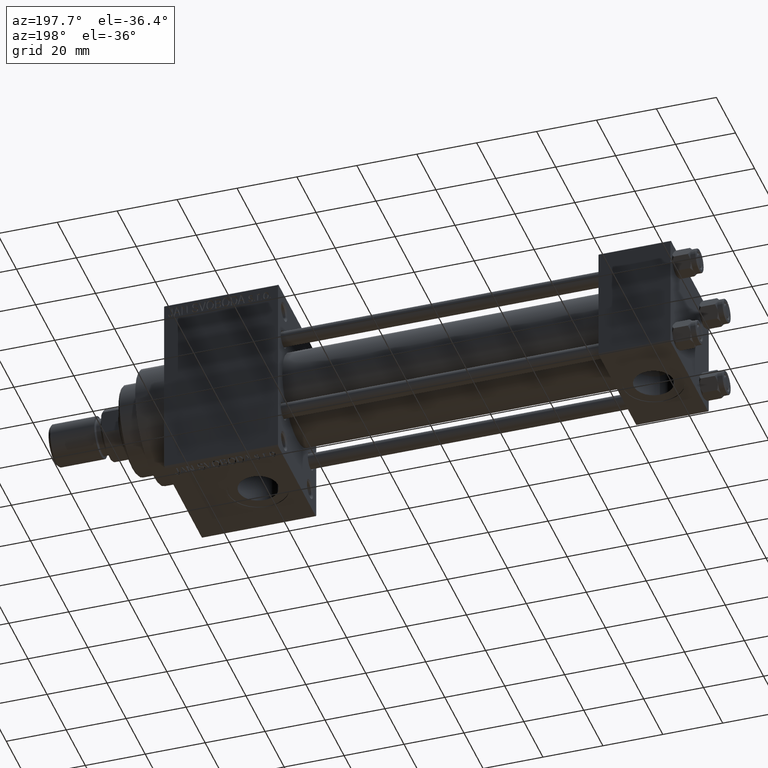
[diagram: clean part render]
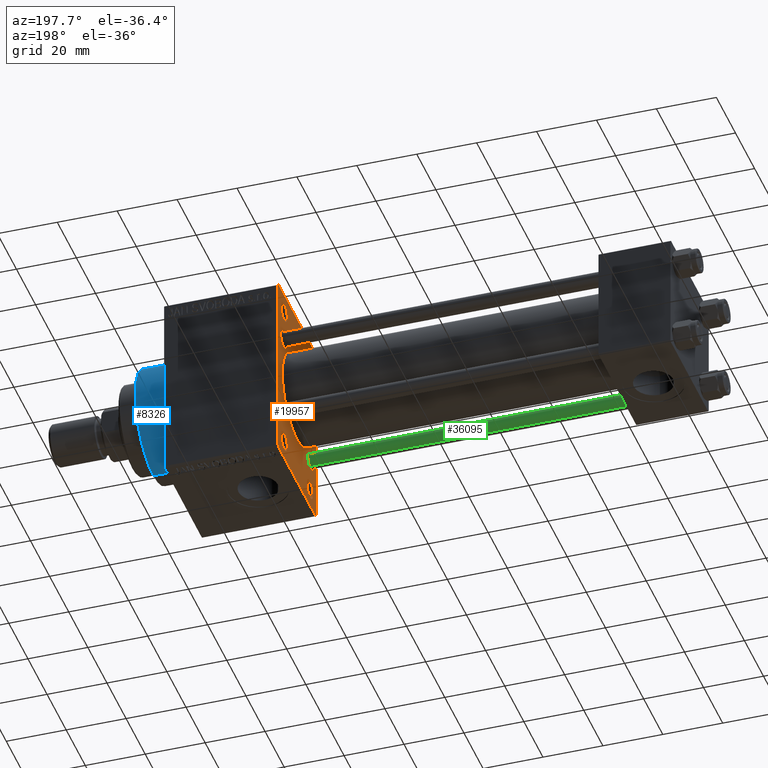
[diagram: same view with three faces highlighted in distinct colors, each labeled with its STEP entity id]
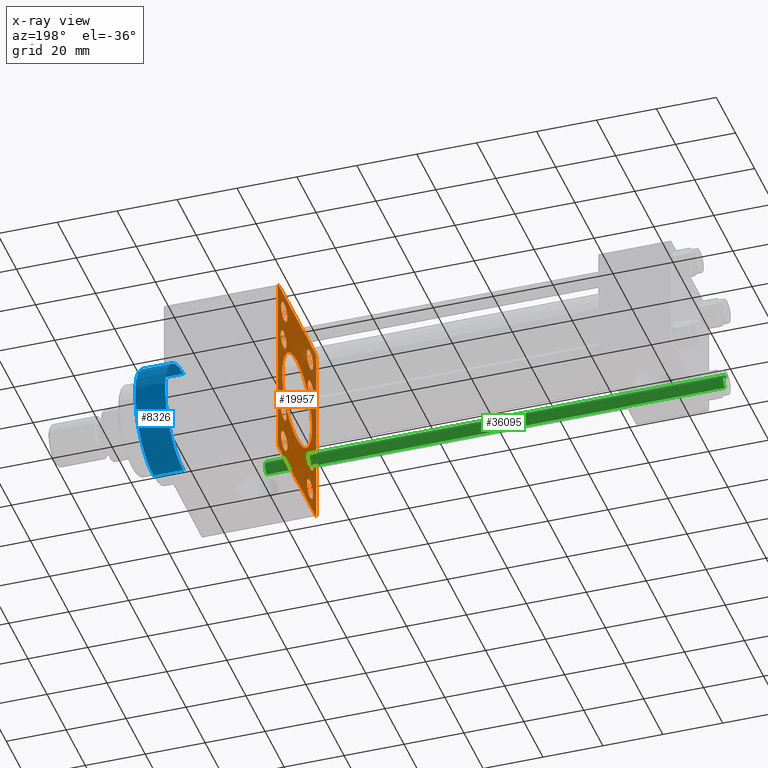
[diagram: x-ray of the same camera — body ghosted, the three highlighted faces saturated]
A machine part, auxiliary view with three faces highlighted in distinct colors.
The next image is the same camera in x-ray (body ghosted, the three faces saturated) — at least one of them is partly hidden behind the body in this view.
Their STEP definitions:

[orange] entity #19957 — the highlighted planar face has unit normal (-1, 0, 0).
#259 = VERTEX_POINT ( 'NONE', #4905 ) ;
#387 = ORIENTED_EDGE ( 'NONE', *, *, #3224, .T. ) ;
#580 = EDGE_CURVE ( 'NONE', #37065, #46453, #18593, .T. ) ;
#715 = CIRCLE ( 'NONE', #6868, 3.000000000000004441 ) ;
#876 = DIRECTION ( 'NONE',  ( 1.000000000000000000, 0.000000000000000000, 0.000000000000000000 ) ) ;
#950 = DIRECTION ( 'NONE',  ( 0.000000000000000000, 0.000000000000000000, 1.000000000000000000 ) ) ;
#1105 = DIRECTION ( 'NONE',  ( 0.000000000000000000, 0.000000000000000000, 1.000000000000000000 ) ) ;
#1132 = CARTESIAN_POINT ( 'NONE',  ( 131.0000000000000000, -19.49999999999997158, 31.99999999999999289 ) ) ;
#1135 = LINE ( 'NONE', #23267, #30967 ) ;
#1316 = VERTEX_POINT ( 'NONE', #16716 ) ;
#1395 = VERTEX_POINT ( 'NONE', #32395 ) ;
#1433 = EDGE_CURVE ( 'NONE', #30533, #46453, #46326, .T. ) ;
#1519 = ORIENTED_EDGE ( 'NONE', *, *, #36451, .T. ) ;
#1577 = ORIENTED_EDGE ( 'NONE', *, *, #42652, .T. ) ;
#1830 = DIRECTION ( 'NONE',  ( 0.000000000000000000, -1.000000000000000000, 0.000000000000000000 ) ) ;
#1849 = CARTESIAN_POINT ( 'NONE',  ( 131.0000000000000000, -13.50000000000000178, 25.50000000000000355 ) ) ;
#1903 = CARTESIAN_POINT ( 'NONE',  ( 131.0000000000000000, -13.50000000000000533, -25.49999999999999645 ) ) ;
#2145 = DIRECTION ( 'NONE',  ( 1.000000000000000000, 0.000000000000000000, 0.000000000000000000 ) ) ;
#2376 = CARTESIAN_POINT ( 'NONE',  ( 131.0000000000000000, -7.038826752868131828E-16, -15.50000000000000000 ) ) ;
#2819 = EDGE_CURVE ( 'NONE', #3789, #33809, #15700, .T. ) ;
#2947 = DIRECTION ( 'NONE',  ( 0.000000000000000000, 0.7071067811865474617, -0.7071067811865474617 ) ) ;
#2972 = VECTOR ( 'NONE', #6617, 1000.000000000000000 ) ;
#3224 = EDGE_CURVE ( 'NONE', #16885, #9035, #35958, .T. ) ;
#3440 = ORIENTED_EDGE ( 'NONE', *, *, #27578, .T. ) ;
#3789 = VERTEX_POINT ( 'NONE', #40495 ) ;
#4027 = DIRECTION ( 'NONE',  ( 0.000000000000000000, 0.000000000000000000, 1.000000000000000000 ) ) ;
#4072 = VECTOR ( 'NONE', #38363, 1000.000000000000000 ) ;
#4248 = FACE_BOUND ( 'NONE', #5681, .T. ) ;
#4351 = CARTESIAN_POINT ( 'NONE',  ( 131.0000000000000000, -14.15000000000000036, 14.15000000000000036 ) ) ;
#4597 = DIRECTION ( 'NONE',  ( 1.000000000000000000, 0.000000000000000000, 0.000000000000000000 ) ) ;
#4793 = EDGE_CURVE ( 'NONE', #16957, #9692, #40052, .T. ) ;
#4905 = CARTESIAN_POINT ( 'NONE',  ( 131.0000000000000000, -14.15000000000000036, 11.14999999999999503 ) ) ;
#5239 = AXIS2_PLACEMENT_3D ( 'NONE', #30130, #33951, #30355 ) ;
#5347 = ORIENTED_EDGE ( 'NONE', *, *, #4793, .T. ) ;
#5528 = DIRECTION ( 'NONE',  ( 0.000000000000000000, 0.000000000000000000, 1.000000000000000000 ) ) ;
#5681 = EDGE_LOOP ( 'NONE', ( #29160, #9591 ) ) ;
#5691 = CARTESIAN_POINT ( 'NONE',  ( 131.0000000000000000, -14.15000000000000036, -14.15000000000000036 ) ) ;
#6204 = ORIENTED_EDGE ( 'NONE', *, *, #40383, .T. ) ;
#6442 = ORIENTED_EDGE ( 'NONE', *, *, #10161, .T. ) ;
#6529 = EDGE_LOOP ( 'NONE', ( #23246, #5347, #27261, #10349, #10184, #17204, #1519, #8809 ) ) ;
#6617 = DIRECTION ( 'NONE',  ( 0.000000000000000000, -0.7071067811865328068, 0.7071067811865622277 ) ) ;
#6636 = CIRCLE ( 'NONE', #33476, 3.000000000000004441 ) ;
#6664 = EDGE_CURVE ( 'NONE', #13702, #38102, #9636, .T. ) ;
#6719 = CARTESIAN_POINT ( 'NONE',  ( 131.0000000000000000, -14.15000000000000036, 17.15000000000000568 ) ) ;
#6868 = AXIS2_PLACEMENT_3D ( 'NONE', #23236, #876, #1105 ) ;
#7360 = EDGE_LOOP ( 'NONE', ( #43178, #12274 ) ) ;
#8094 = FACE_BOUND ( 'NONE', #9357, .T. ) ;
#8494 = CARTESIAN_POINT ( 'NONE',  ( 131.0000000000000000, 25.75000000000000000, -25.75000000000000000 ) ) ;
#8809 = ORIENTED_EDGE ( 'NONE', *, *, #2819, .T. ) ;
#8856 = EDGE_CURVE ( 'NONE', #13812, #26885, #46566, .T. ) ;
#9035 = VERTEX_POINT ( 'NONE', #33381 ) ;
#9146 = DIRECTION ( 'NONE',  ( 0.000000000000000000, 0.000000000000000000, 1.000000000000000000 ) ) ;
#9357 = EDGE_LOOP ( 'NONE', ( #14183, #17517 ) ) ;
#9375 = DIRECTION ( 'NONE',  ( 0.000000000000000000, 0.000000000000000000, 1.000000000000000000 ) ) ;
#9591 = ORIENTED_EDGE ( 'NONE', *, *, #36874, .T. ) ;
#9636 = CIRCLE ( 'NONE', #44206, 3.000000000000004441 ) ;
#9692 = VERTEX_POINT ( 'NONE', #41463 ) ;
#10105 = EDGE_LOOP ( 'NONE', ( #3440, #6204 ) ) ;
#10161 = EDGE_CURVE ( 'NONE', #32827, #13862, #44307, .T. ) ;
#10184 = ORIENTED_EDGE ( 'NONE', *, *, #1433, .F. ) ;
#10244 = CARTESIAN_POINT ( 'NONE',  ( 131.0000000000000000, -25.75000000000041922, -25.74999999999934985 ) ) ;
#10334 = DIRECTION ( 'NONE',  ( 1.000000000000000000, 0.000000000000000000, 0.000000000000000000 ) ) ;
#10349 = ORIENTED_EDGE ( 'NONE', *, *, #580, .T. ) ;
#10894 = CARTESIAN_POINT ( 'NONE',  ( 131.0000000000000000, 25.75000000000000000, 25.75000000000000000 ) ) ;
#11320 = DIRECTION ( 'NONE',  ( 1.000000000000000000, 0.000000000000000000, 0.000000000000000000 ) ) ;
#11481 = DIRECTION ( 'NONE',  ( -1.000000000000000000, 0.000000000000000000, -0.000000000000000000 ) ) ;
#11610 = CARTESIAN_POINT ( 'NONE',  ( 131.0000000000000000, -25.74999999999943867, 25.75000000000087397 ) ) ;
#11634 = CARTESIAN_POINT ( 'NONE',  ( 131.0000000000000000, -14.15000000000000036, 14.15000000000000036 ) ) ;
#11707 = FACE_BOUND ( 'NONE', #7360, .T. ) ;
#11950 = CARTESIAN_POINT ( 'NONE',  ( 131.0000000000000000, -2.602085213965210642E-15, 15.50000000000000000 ) ) ;
#12263 = DIRECTION ( 'NONE',  ( 1.000000000000000000, 0.000000000000000000, 0.000000000000000000 ) ) ;
#12274 = ORIENTED_EDGE ( 'NONE', *, *, #18502, .T. ) ;
#12497 = CARTESIAN_POINT ( 'NONE',  ( 131.0000000000000000, 19.50000000000000000, 32.00000000000000000 ) ) ;
#12499 = DIRECTION ( 'NONE',  ( 1.000000000000000000, 0.000000000000000000, 0.000000000000000000 ) ) ;
#12662 = DIRECTION ( 'NONE',  ( 1.000000000000000000, 0.000000000000000000, 0.000000000000000000 ) ) ;
#12873 = AXIS2_PLACEMENT_3D ( 'NONE', #36808, #32259, #14447 ) ;
#13302 = EDGE_CURVE ( 'NONE', #25689, #1316, #6636, .T. ) ;
#13702 = VERTEX_POINT ( 'NONE', #14682 ) ;
#13812 = VERTEX_POINT ( 'NONE', #26447 ) ;
#13817 = AXIS2_PLACEMENT_3D ( 'NONE', #45897, #38219, #950 ) ;
#13862 = VERTEX_POINT ( 'NONE', #2376 ) ;
#14183 = ORIENTED_EDGE ( 'NONE', *, *, #6664, .T. ) ;
#14348 = AXIS2_PLACEMENT_3D ( 'NONE', #33138, #32655, #32893 ) ;
#14447 = DIRECTION ( 'NONE',  ( 0.000000000000000000, 0.000000000000000000, 1.000000000000000000 ) ) ;
#14682 = CARTESIAN_POINT ( 'NONE',  ( 131.0000000000000000, -14.15000000000000036, -11.14999999999999680 ) ) ;
#15096 = EDGE_CURVE ( 'NONE', #22489, #28558, #27303, .T. ) ;
#15247 = CIRCLE ( 'NONE', #13817, 3.000000000000004441 ) ;
#15314 = FACE_BOUND ( 'NONE', #10105, .T. ) ;
#15548 = FACE_BOUND ( 'NONE', #37184, .T. ) ;
#15652 = EDGE_CURVE ( 'NONE', #43996, #259, #18885, .T. ) ;
#15700 = LINE ( 'NONE', #8494, #22838 ) ;
#15851 = CARTESIAN_POINT ( 'NONE',  ( 131.0000000000000000, 14.15000000000000036, 11.14999999999999680 ) ) ;
#15911 = DIRECTION ( 'NONE',  ( 1.000000000000000000, 0.000000000000000000, 0.000000000000000000 ) ) ;
#15997 = CARTESIAN_POINT ( 'NONE',  ( 131.0000000000000000, -20.00000000000000000, 31.99999999999999289 ) ) ;
#16365 = AXIS2_PLACEMENT_3D ( 'NONE', #31025, #12263, #5528 ) ;
#16707 = CARTESIAN_POINT ( 'NONE',  ( 131.0000000000000000, -13.50000000000000533, -22.25000000000004619 ) ) ;
#16716 = CARTESIAN_POINT ( 'NONE',  ( 131.0000000000000000, 14.15000000000000036, -17.15000000000000568 ) ) ;
#16810 = AXIS2_PLACEMENT_3D ( 'NONE', #1903, #2145, #9375 ) ;
#16885 = VERTEX_POINT ( 'NONE', #24951 ) ;
#16957 = VERTEX_POINT ( 'NONE', #20628 ) ;
#17184 = CARTESIAN_POINT ( 'NONE',  ( 131.0000000000000000, 13.49999999999999822, -22.25000000000004974 ) ) ;
#17204 = ORIENTED_EDGE ( 'NONE', *, *, #18445, .T. ) ;
#17517 = ORIENTED_EDGE ( 'NONE', *, *, #45270, .T. ) ;
#17530 = CARTESIAN_POINT ( 'NONE',  ( 131.0000000000000000, -2.602085213965210642E-15, 0.000000000000000000 ) ) ;
#17609 = CIRCLE ( 'NONE', #16810, 3.249999999999947597 ) ;
#18417 = ORIENTED_EDGE ( 'NONE', *, *, #23006, .T. ) ;
#18445 = EDGE_CURVE ( 'NONE', #30533, #1395, #44059, .T. ) ;
#18466 = FACE_OUTER_BOUND ( 'NONE', #6529, .T. ) ;
#18502 = EDGE_CURVE ( 'NONE', #259, #43996, #31239, .T. ) ;
#18562 = CARTESIAN_POINT ( 'NONE',  ( 131.0000000000000000, -14.15000000000000036, -17.15000000000000568 ) ) ;
#18593 = LINE ( 'NONE', #11610, #45158 ) ;
#18674 = CIRCLE ( 'NONE', #16365, 3.249999999999947597 ) ;
#18885 = CIRCLE ( 'NONE', #43471, 3.000000000000004441 ) ;
#18922 = DIRECTION ( 'NONE',  ( 1.000000000000000000, 0.000000000000000000, 0.000000000000000000 ) ) ;
#18970 = EDGE_LOOP ( 'NONE', ( #18417, #44175 ) ) ;
#19029 = DIRECTION ( 'NONE',  ( 0.000000000000000000, 0.000000000000000000, 1.000000000000000000 ) ) ;
#19051 = CIRCLE ( 'NONE', #46718, 3.249999999999947597 ) ;
#19076 = DIRECTION ( 'NONE',  ( 1.000000000000000000, 0.000000000000000000, 0.000000000000000000 ) ) ;
#19957 = ADVANCED_FACE ( 'NONE', ( #29765, #40339, #4248, #15548, #11707, #15314, #26164, #8094, #30230, #18466 ), #26623, .T. ) ;
#20473 = EDGE_CURVE ( 'NONE', #24222, #45761, #42845, .T. ) ;
#20628 = CARTESIAN_POINT ( 'NONE',  ( 131.0000000000000000, -19.50000000000002842, -32.00000000000000000 ) ) ;
#21228 = ORIENTED_EDGE ( 'NONE', *, *, #43102, .T. ) ;
#21236 = AXIS2_PLACEMENT_3D ( 'NONE', #22600, #11320, #40652 ) ;
#21570 = EDGE_CURVE ( 'NONE', #9035, #16885, #40577, .T. ) ;
#21573 = EDGE_CURVE ( 'NONE', #28558, #22489, #19051, .T. ) ;
#21798 = CARTESIAN_POINT ( 'NONE',  ( 131.0000000000000000, 20.00000000000000000, 32.00000000000000000 ) ) ;
#22489 = VERTEX_POINT ( 'NONE', #44560 ) ;
#22600 = CARTESIAN_POINT ( 'NONE',  ( 131.0000000000000000, -13.50000000000000533, -25.49999999999999645 ) ) ;
#22838 = VECTOR ( 'NONE', #23631, 1000.000000000000114 ) ;
#23006 = EDGE_CURVE ( 'NONE', #26885, #13812, #17609, .T. ) ;
#23236 = CARTESIAN_POINT ( 'NONE',  ( 131.0000000000000000, 14.15000000000000036, 14.15000000000000036 ) ) ;
#23246 = ORIENTED_EDGE ( 'NONE', *, *, #28681, .T. ) ;
#23267 = CARTESIAN_POINT ( 'NONE',  ( 131.0000000000000000, 20.00000000000000000, 32.00000000000000000 ) ) ;
#23631 = DIRECTION ( 'NONE',  ( -0.000000000000000000, -0.7071067811865474617, -0.7071067811865474617 ) ) ;
#24222 = VERTEX_POINT ( 'NONE', #17184 ) ;
#24357 = VECTOR ( 'NONE', #39116, 1000.000000000000000 ) ;
#24586 = DIRECTION ( 'NONE',  ( 1.000000000000000000, 0.000000000000000000, 0.000000000000000000 ) ) ;
#24951 = CARTESIAN_POINT ( 'NONE',  ( 131.0000000000000000, 13.49999999999999822, 28.74999999999995381 ) ) ;
#25255 = CIRCLE ( 'NONE', #26015, 3.000000000000004441 ) ;
#25689 = VERTEX_POINT ( 'NONE', #32473 ) ;
#26015 = AXIS2_PLACEMENT_3D ( 'NONE', #27953, #24586, #39480 ) ;
#26164 = FACE_BOUND ( 'NONE', #27759, .T. ) ;
#26312 = DIRECTION ( 'NONE',  ( 0.000000000000000000, 0.000000000000000000, 1.000000000000000000 ) ) ;
#26447 = CARTESIAN_POINT ( 'NONE',  ( 131.0000000000000000, -13.50000000000000533, -28.74999999999994316 ) ) ;
#26623 = PLANE ( 'NONE',  #46688 ) ;
#26870 = CARTESIAN_POINT ( 'NONE',  ( 131.0000000000000000, -13.50000000000000178, 22.25000000000005329 ) ) ;
#26885 = VERTEX_POINT ( 'NONE', #16707 ) ;
#27261 = ORIENTED_EDGE ( 'NONE', *, *, #36529, .F. ) ;
#27303 = CIRCLE ( 'NONE', #28095, 3.249999999999947597 ) ;
#27578 = EDGE_CURVE ( 'NONE', #32033, #45240, #715, .T. ) ;
#27759 = EDGE_LOOP ( 'NONE', ( #40409, #1577 ) ) ;
#27953 = CARTESIAN_POINT ( 'NONE',  ( 131.0000000000000000, 14.15000000000000036, -14.15000000000000036 ) ) ;
#28095 = AXIS2_PLACEMENT_3D ( 'NONE', #1849, #34312, #45616 ) ;
#28558 = VERTEX_POINT ( 'NONE', #26870 ) ;
#28681 = EDGE_CURVE ( 'NONE', #33809, #16957, #42475, .T. ) ;
#29046 = AXIS2_PLACEMENT_3D ( 'NONE', #45452, #12499, #9146 ) ;
#29160 = ORIENTED_EDGE ( 'NONE', *, *, #20473, .T. ) ;
#29765 = FACE_BOUND ( 'NONE', #34418, .T. ) ;
#30001 = DIRECTION ( 'NONE',  ( -0.000000000000000000, 0.000000000000000000, 1.000000000000000000 ) ) ;
#30130 = CARTESIAN_POINT ( 'NONE',  ( 131.0000000000000000, 13.49999999999999822, 25.50000000000000355 ) ) ;
#30205 = LINE ( 'NONE', #15997, #4072 ) ;
#30230 = FACE_BOUND ( 'NONE', #36566, .T. ) ;
#30355 = DIRECTION ( 'NONE',  ( 0.000000000000000000, 0.000000000000000000, 1.000000000000000000 ) ) ;
#30533 = VERTEX_POINT ( 'NONE', #12497 ) ;
#30967 = VECTOR ( 'NONE', #37940, 1000.000000000000000 ) ;
#31025 = CARTESIAN_POINT ( 'NONE',  ( 131.0000000000000000, 13.49999999999999822, -25.50000000000000000 ) ) ;
#31239 = CIRCLE ( 'NONE', #35072, 3.000000000000004441 ) ;
#31588 = ORIENTED_EDGE ( 'NONE', *, *, #21570, .T. ) ;
#32033 = VERTEX_POINT ( 'NONE', #44520 ) ;
#32259 = DIRECTION ( 'NONE',  ( 1.000000000000000000, 0.000000000000000000, 0.000000000000000000 ) ) ;
#32395 = CARTESIAN_POINT ( 'NONE',  ( 131.0000000000000000, 20.00000000000000000, 31.50000000000000000 ) ) ;
#32473 = CARTESIAN_POINT ( 'NONE',  ( 131.0000000000000000, 14.15000000000000036, -11.14999999999999680 ) ) ;
#32655 = DIRECTION ( 'NONE',  ( 1.000000000000000000, 0.000000000000000000, 0.000000000000000000 ) ) ;
#32827 = VERTEX_POINT ( 'NONE', #11950 ) ;
#32893 = DIRECTION ( 'NONE',  ( 0.000000000000000000, 0.000000000000000000, -1.000000000000000000 ) ) ;
#33138 = CARTESIAN_POINT ( 'NONE',  ( 131.0000000000000000, -2.602085213965210642E-15, 0.000000000000000000 ) ) ;
#33264 = DIRECTION ( 'NONE',  ( -0.000000000000000000, 0.7071067811865672237, 0.7071067811865279218 ) ) ;
#33381 = CARTESIAN_POINT ( 'NONE',  ( 131.0000000000000000, 13.49999999999999822, 22.25000000000005684 ) ) ;
#33476 = AXIS2_PLACEMENT_3D ( 'NONE', #47557, #18922, #4027 ) ;
#33493 = CARTESIAN_POINT ( 'NONE',  ( 131.0000000000000000, 13.49999999999999822, -28.74999999999994671 ) ) ;
#33809 = VERTEX_POINT ( 'NONE', #44388 ) ;
#33951 = DIRECTION ( 'NONE',  ( 1.000000000000000000, 0.000000000000000000, 0.000000000000000000 ) ) ;
#34312 = DIRECTION ( 'NONE',  ( 1.000000000000000000, 0.000000000000000000, 0.000000000000000000 ) ) ;
#34381 = ORIENTED_EDGE ( 'NONE', *, *, #21573, .T. ) ;
#34418 = EDGE_LOOP ( 'NONE', ( #45580, #34381 ) ) ;
#34777 = CARTESIAN_POINT ( 'NONE',  ( 131.0000000000000000, 20.00000000000000000, -32.00000000000000000 ) ) ;
#35072 = AXIS2_PLACEMENT_3D ( 'NONE', #4351, #41150, #19029 ) ;
#35958 = CIRCLE ( 'NONE', #29046, 3.249999999999947597 ) ;
#36451 = EDGE_CURVE ( 'NONE', #1395, #3789, #1135, .T. ) ;
#36529 = EDGE_CURVE ( 'NONE', #37065, #9692, #30205, .T. ) ;
#36566 = EDGE_LOOP ( 'NONE', ( #6442, #21228 ) ) ;
#36786 = CIRCLE ( 'NONE', #42928, 15.50000000000000000 ) ;
#36808 = CARTESIAN_POINT ( 'NONE',  ( 131.0000000000000000, 13.49999999999999822, -25.50000000000000000 ) ) ;
#36874 = EDGE_CURVE ( 'NONE', #45761, #24222, #18674, .T. ) ;
#36985 = CARTESIAN_POINT ( 'NONE',  ( 131.0000000000000000, 0.000000000000000000, 0.000000000000000000 ) ) ;
#37065 = VERTEX_POINT ( 'NONE', #42551 ) ;
#37184 = EDGE_LOOP ( 'NONE', ( #387, #31588 ) ) ;
#37621 = VECTOR ( 'NONE', #1830, 1000.000000000000000 ) ;
#37940 = DIRECTION ( 'NONE',  ( 0.000000000000000000, 0.000000000000000000, -1.000000000000000000 ) ) ;
#38102 = VERTEX_POINT ( 'NONE', #18562 ) ;
#38219 = DIRECTION ( 'NONE',  ( 1.000000000000000000, 0.000000000000000000, 0.000000000000000000 ) ) ;
#38363 = DIRECTION ( 'NONE',  ( 0.000000000000000000, 0.000000000000000000, -1.000000000000000000 ) ) ;
#39116 = DIRECTION ( 'NONE',  ( 0.000000000000000000, -1.000000000000000000, -1.734723475976807094E-16 ) ) ;
#39480 = DIRECTION ( 'NONE',  ( 0.000000000000000000, 0.000000000000000000, 1.000000000000000000 ) ) ;
#40052 = LINE ( 'NONE', #10244, #2972 ) ;
#40145 = DIRECTION ( 'NONE',  ( 0.000000000000000000, 0.000000000000000000, -1.000000000000000000 ) ) ;
#40261 = AXIS2_PLACEMENT_3D ( 'NONE', #44767, #4597, #44064 ) ;
#40339 = FACE_BOUND ( 'NONE', #18970, .T. ) ;
#40383 = EDGE_CURVE ( 'NONE', #45240, #32033, #43354, .T. ) ;
#40409 = ORIENTED_EDGE ( 'NONE', *, *, #13302, .T. ) ;
#40495 = CARTESIAN_POINT ( 'NONE',  ( 131.0000000000000000, 20.00000000000000000, -31.50000000000000000 ) ) ;
#40577 = CIRCLE ( 'NONE', #5239, 3.249999999999947597 ) ;
#40652 = DIRECTION ( 'NONE',  ( 0.000000000000000000, 0.000000000000000000, 1.000000000000000000 ) ) ;
#41150 = DIRECTION ( 'NONE',  ( 1.000000000000000000, 0.000000000000000000, 0.000000000000000000 ) ) ;
#41463 = CARTESIAN_POINT ( 'NONE',  ( 131.0000000000000000, -20.00000000000000000, -31.50000000000000711 ) ) ;
#41981 = VECTOR ( 'NONE', #2947, 1000.000000000000114 ) ;
#42253 = DIRECTION ( 'NONE',  ( 0.000000000000000000, 0.000000000000000000, 1.000000000000000000 ) ) ;
#42475 = LINE ( 'NONE', #34777, #37621 ) ;
#42551 = CARTESIAN_POINT ( 'NONE',  ( 131.0000000000000000, -20.00000000000000000, 31.49999999999999289 ) ) ;
#42652 = EDGE_CURVE ( 'NONE', #1316, #25689, #25255, .T. ) ;
#42845 = CIRCLE ( 'NONE', #12873, 3.249999999999947597 ) ;
#42928 = AXIS2_PLACEMENT_3D ( 'NONE', #17530, #10334, #40145 ) ;
#43102 = EDGE_CURVE ( 'NONE', #13862, #32827, #36786, .T. ) ;
#43178 = ORIENTED_EDGE ( 'NONE', *, *, #15652, .T. ) ;
#43354 = CIRCLE ( 'NONE', #40261, 3.000000000000004441 ) ;
#43471 = AXIS2_PLACEMENT_3D ( 'NONE', #11634, #19076, #26312 ) ;
#43996 = VERTEX_POINT ( 'NONE', #6719 ) ;
#44059 = LINE ( 'NONE', #10894, #41981 ) ;
#44064 = DIRECTION ( 'NONE',  ( 0.000000000000000000, 0.000000000000000000, 1.000000000000000000 ) ) ;
#44175 = ORIENTED_EDGE ( 'NONE', *, *, #8856, .T. ) ;
#44206 = AXIS2_PLACEMENT_3D ( 'NONE', #5691, #12662, #42253 ) ;
#44307 = CIRCLE ( 'NONE', #14348, 15.50000000000000000 ) ;
#44388 = CARTESIAN_POINT ( 'NONE',  ( 131.0000000000000000, 19.50000000000000000, -32.00000000000000000 ) ) ;
#44520 = CARTESIAN_POINT ( 'NONE',  ( 131.0000000000000000, 14.15000000000000036, 17.15000000000000568 ) ) ;
#44560 = CARTESIAN_POINT ( 'NONE',  ( 131.0000000000000000, -13.50000000000000178, 28.74999999999995026 ) ) ;
#44767 = CARTESIAN_POINT ( 'NONE',  ( 131.0000000000000000, 14.15000000000000036, 14.15000000000000036 ) ) ;
#45012 = CARTESIAN_POINT ( 'NONE',  ( 131.0000000000000000, -13.50000000000000178, 25.50000000000000355 ) ) ;
#45158 = VECTOR ( 'NONE', #33264, 1000.000000000000000 ) ;
#45240 = VERTEX_POINT ( 'NONE', #15851 ) ;
#45256 = DIRECTION ( 'NONE',  ( 0.000000000000000000, 0.000000000000000000, 1.000000000000000000 ) ) ;
#45270 = EDGE_CURVE ( 'NONE', #38102, #13702, #15247, .T. ) ;
#45452 = CARTESIAN_POINT ( 'NONE',  ( 131.0000000000000000, 13.49999999999999822, 25.50000000000000355 ) ) ;
#45580 = ORIENTED_EDGE ( 'NONE', *, *, #15096, .T. ) ;
#45616 = DIRECTION ( 'NONE',  ( 0.000000000000000000, 0.000000000000000000, 1.000000000000000000 ) ) ;
#45761 = VERTEX_POINT ( 'NONE', #33493 ) ;
#45897 = CARTESIAN_POINT ( 'NONE',  ( 131.0000000000000000, -14.15000000000000036, -14.15000000000000036 ) ) ;
#46326 = LINE ( 'NONE', #21798, #24357 ) ;
#46453 = VERTEX_POINT ( 'NONE', #1132 ) ;
#46566 = CIRCLE ( 'NONE', #21236, 3.249999999999947597 ) ;
#46688 = AXIS2_PLACEMENT_3D ( 'NONE', #36985, #11481, #30001 ) ;
#46718 = AXIS2_PLACEMENT_3D ( 'NONE', #45012, #15911, #45256 ) ;
#47557 = CARTESIAN_POINT ( 'NONE',  ( 131.0000000000000000, 14.15000000000000036, -14.15000000000000036 ) ) ;

[blue] entity #8326 — the highlighted cylindrical surface (partial cylindrical patch) has radius 19 mm, axis along (-1, -0, -0).
#1362 = DIRECTION ( 'NONE',  ( -1.000000000000000000, -0.000000000000000000, -0.000000000000000000 ) ) ;
#1502 = LINE ( 'NONE', #44572, #31652 ) ;
#2267 = ORIENTED_EDGE ( 'NONE', *, *, #6613, .T. ) ;
#3332 = VERTEX_POINT ( 'NONE', #40146 ) ;
#6137 = VERTEX_POINT ( 'NONE', #22833 ) ;
#6607 = AXIS2_PLACEMENT_3D ( 'NONE', #44196, #40347, #43492 ) ;
#6613 = EDGE_CURVE ( 'NONE', #3332, #17617, #15798, .T. ) ;
#8326 = ADVANCED_FACE ( 'NONE', ( #32195 ), #25693, .T. ) ;
#8724 = EDGE_CURVE ( 'NONE', #17617, #6137, #20434, .T. ) ;
#11717 = DIRECTION ( 'NONE',  ( 1.000000000000000000, 0.000000000000000000, 0.000000000000000000 ) ) ;
#15798 = LINE ( 'NONE', #23493, #21923 ) ;
#17186 = EDGE_LOOP ( 'NONE', ( #40620, #2267, #17380, #31642 ) ) ;
#17380 = ORIENTED_EDGE ( 'NONE', *, *, #8724, .T. ) ;
#17617 = VERTEX_POINT ( 'NONE', #43772 ) ;
#20434 = CIRCLE ( 'NONE', #24291, 19.00000000000000000 ) ;
#21923 = VECTOR ( 'NONE', #1362, 1000.000000000000000 ) ;
#22833 = CARTESIAN_POINT ( 'NONE',  ( 169.0000000000000000, 0.000000000000000000, 19.00000000000000000 ) ) ;
#23033 = CIRCLE ( 'NONE', #35307, 19.00000000000000000 ) ;
#23493 = CARTESIAN_POINT ( 'NONE',  ( 179.0000000000000284, 2.326828918379970970E-15, -19.00000000000000000 ) ) ;
#24291 = AXIS2_PLACEMENT_3D ( 'NONE', #43319, #25041, #39703 ) ;
#25041 = DIRECTION ( 'NONE',  ( 1.000000000000000000, 0.000000000000000000, 0.000000000000000000 ) ) ;
#25693 = CYLINDRICAL_SURFACE ( 'NONE', #6607, 19.00000000000000000 ) ;
#26319 = VERTEX_POINT ( 'NONE', #42576 ) ;
#27245 = DIRECTION ( 'NONE',  ( -1.000000000000000000, -0.000000000000000000, -0.000000000000000000 ) ) ;
#29479 = EDGE_CURVE ( 'NONE', #3332, #26319, #23033, .T. ) ;
#30013 = CARTESIAN_POINT ( 'NONE',  ( 179.0000000000000284, 0.000000000000000000, 0.000000000000000000 ) ) ;
#31642 = ORIENTED_EDGE ( 'NONE', *, *, #34224, .F. ) ;
#31652 = VECTOR ( 'NONE', #27245, 1000.000000000000000 ) ;
#32195 = FACE_OUTER_BOUND ( 'NONE', #17186, .T. ) ;
#34224 = EDGE_CURVE ( 'NONE', #26319, #6137, #1502, .T. ) ;
#35307 = AXIS2_PLACEMENT_3D ( 'NONE', #30013, #11717, #40589 ) ;
#39703 = DIRECTION ( 'NONE',  ( 0.000000000000000000, 0.000000000000000000, -1.000000000000000000 ) ) ;
#40146 = CARTESIAN_POINT ( 'NONE',  ( 179.0000000000000284, 2.326828918379970970E-15, -19.00000000000000000 ) ) ;
#40347 = DIRECTION ( 'NONE',  ( -1.000000000000000000, -0.000000000000000000, -0.000000000000000000 ) ) ;
#40589 = DIRECTION ( 'NONE',  ( 0.000000000000000000, 0.000000000000000000, -1.000000000000000000 ) ) ;
#40620 = ORIENTED_EDGE ( 'NONE', *, *, #29479, .F. ) ;
#42576 = CARTESIAN_POINT ( 'NONE',  ( 179.0000000000000284, 0.000000000000000000, 19.00000000000000000 ) ) ;
#43319 = CARTESIAN_POINT ( 'NONE',  ( 169.0000000000000000, 0.000000000000000000, 0.000000000000000000 ) ) ;
#43492 = DIRECTION ( 'NONE',  ( 0.000000000000000000, 0.000000000000000000, 1.000000000000000000 ) ) ;
#43772 = CARTESIAN_POINT ( 'NONE',  ( 169.0000000000000000, 2.326828918379970970E-15, -19.00000000000000000 ) ) ;
#44196 = CARTESIAN_POINT ( 'NONE',  ( 179.0000000000000284, 0.000000000000000000, 0.000000000000000000 ) ) ;
#44572 = CARTESIAN_POINT ( 'NONE',  ( 179.0000000000000284, 0.000000000000000000, 19.00000000000000000 ) ) ;

[green] entity #36095 — the highlighted cylindrical surface (edge-blend (fillet) strip) has radius 2.5 mm, axis along (-1, 0, 0).
#449 = ORIENTED_EDGE ( 'NONE', *, *, #18768, .T. ) ;
#2078 = CARTESIAN_POINT ( 'NONE',  ( 2.500000000000000000, 3.061616997868383141E-16, 153.5000000000000284 ) ) ;
#2536 = ORIENTED_EDGE ( 'NONE', *, *, #16004, .T. ) ;
#4930 = CYLINDRICAL_SURFACE ( 'NONE', #43226, 2.500000000000000000 ) ;
#6013 = VECTOR ( 'NONE', #23324, 1000.000000000000000 ) ;
#8427 = LINE ( 'NONE', #15868, #6013 ) ;
#8439 = VERTEX_POINT ( 'NONE', #2078 ) ;
#9798 = CIRCLE ( 'NONE', #36675, 2.500000000000000000 ) ;
#12154 = EDGE_LOOP ( 'NONE', ( #16756, #2536, #17245, #449 ) ) ;
#14296 = CIRCLE ( 'NONE', #19659, 2.500000000000000000 ) ;
#15766 = DIRECTION ( 'NONE',  ( -0.000000000000000000, -0.000000000000000000, -1.000000000000000000 ) ) ;
#15868 = CARTESIAN_POINT ( 'NONE',  ( 2.500000000000000000, 3.061616997868383141E-16, 154.0000000000000000 ) ) ;
#16004 = EDGE_CURVE ( 'NONE', #8439, #18882, #14296, .T. ) ;
#16756 = ORIENTED_EDGE ( 'NONE', *, *, #42812, .F. ) ;
#17245 = ORIENTED_EDGE ( 'NONE', *, *, #41488, .T. ) ;
#18768 = EDGE_CURVE ( 'NONE', #37721, #31385, #9798, .T. ) ;
#18882 = VERTEX_POINT ( 'NONE', #41752 ) ;
#19659 = AXIS2_PLACEMENT_3D ( 'NONE', #30690, #32932, #29567 ) ;
#19934 = LINE ( 'NONE', #20169, #25226 ) ;
#20169 = CARTESIAN_POINT ( 'NONE',  ( -2.500000000000000000, 0.000000000000000000, 154.0000000000000000 ) ) ;
#23223 = CARTESIAN_POINT ( 'NONE',  ( 0.000000000000000000, 0.000000000000000000, 154.0000000000000000 ) ) ;
#23324 = DIRECTION ( 'NONE',  ( -0.000000000000000000, -0.000000000000000000, -1.000000000000000000 ) ) ;
#25226 = VECTOR ( 'NONE', #34354, 1000.000000000000000 ) ;
#28257 = CARTESIAN_POINT ( 'NONE',  ( -2.500000000000000000, 0.000000000000000000, 0.5000000000000281997 ) ) ;
#29108 = DIRECTION ( 'NONE',  ( -0.000000000000000000, -0.000000000000000000, 1.000000000000000000 ) ) ;
#29567 = DIRECTION ( 'NONE',  ( 1.000000000000000000, 0.000000000000000000, 0.000000000000000000 ) ) ;
#30688 = FACE_OUTER_BOUND ( 'NONE', #12154, .T. ) ;
#30690 = CARTESIAN_POINT ( 'NONE',  ( 0.000000000000000000, 0.000000000000000000, 153.5000000000000284 ) ) ;
#31385 = VERTEX_POINT ( 'NONE', #42081 ) ;
#31751 = DIRECTION ( 'NONE',  ( 1.000000000000000000, 0.000000000000000000, 0.000000000000000000 ) ) ;
#32932 = DIRECTION ( 'NONE',  ( 0.000000000000000000, 0.000000000000000000, -1.000000000000000000 ) ) ;
#34354 = DIRECTION ( 'NONE',  ( -0.000000000000000000, -0.000000000000000000, -1.000000000000000000 ) ) ;
#36077 = CARTESIAN_POINT ( 'NONE',  ( 0.000000000000000000, 0.000000000000000000, 0.5000000000000281997 ) ) ;
#36095 = ADVANCED_FACE ( 'NONE', ( #30688 ), #4930, .T. ) ;
#36675 = AXIS2_PLACEMENT_3D ( 'NONE', #36077, #29108, #31751 ) ;
#37721 = VERTEX_POINT ( 'NONE', #28257 ) ;
#41488 = EDGE_CURVE ( 'NONE', #18882, #37721, #19934, .T. ) ;
#41740 = DIRECTION ( 'NONE',  ( -1.000000000000000000, 0.000000000000000000, 0.000000000000000000 ) ) ;
#41752 = CARTESIAN_POINT ( 'NONE',  ( -2.500000000000000000, 0.000000000000000000, 153.5000000000000284 ) ) ;
#42081 = CARTESIAN_POINT ( 'NONE',  ( 2.500000000000000000, 3.061616997868383141E-16, 0.5000000000000281997 ) ) ;
#42812 = EDGE_CURVE ( 'NONE', #8439, #31385, #8427, .T. ) ;
#43226 = AXIS2_PLACEMENT_3D ( 'NONE', #23223, #15766, #41740 ) ;